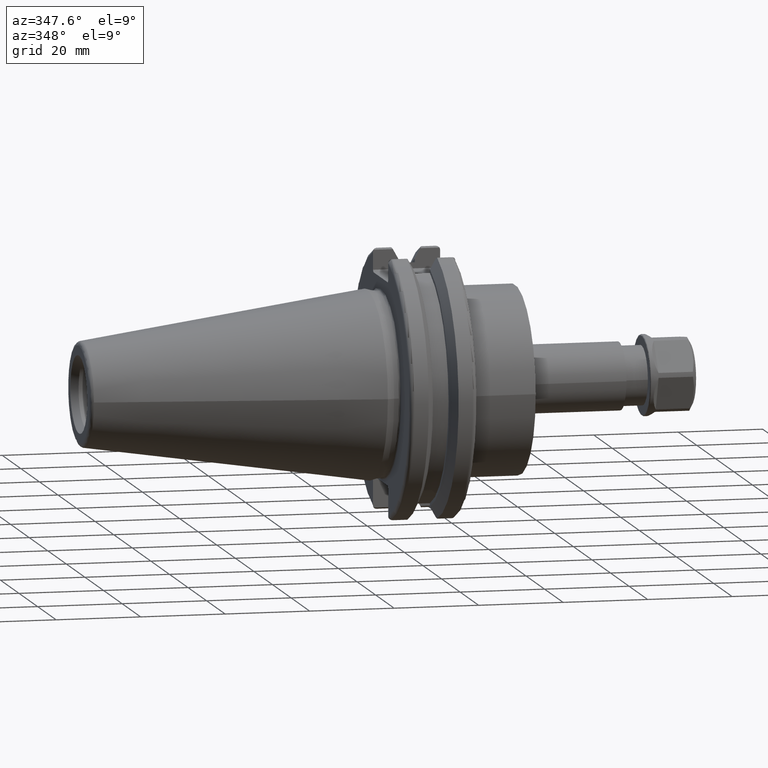
[diagram: clean part render]
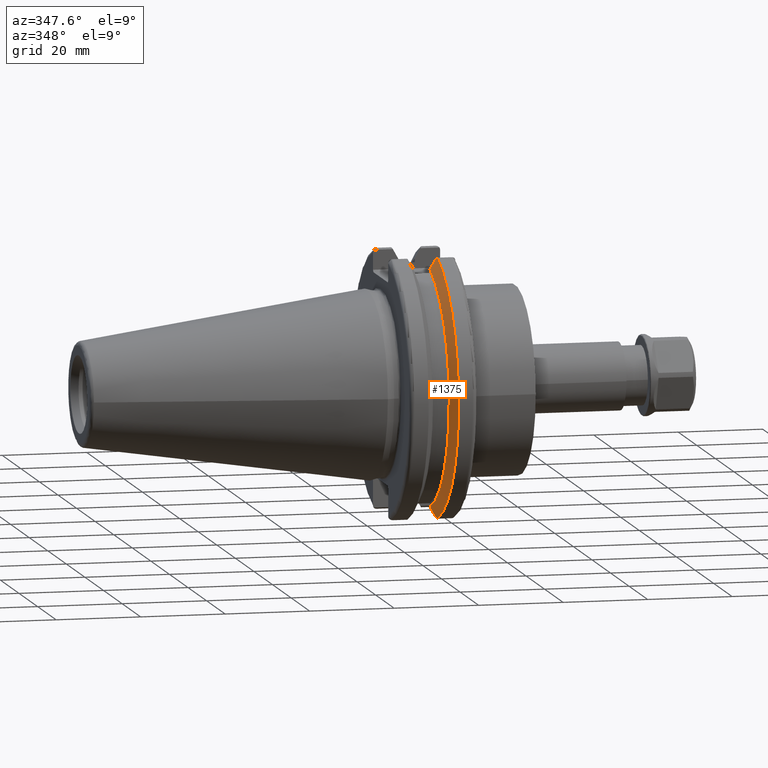
[diagram: same view with one face highlighted and labeled with its STEP entity id]
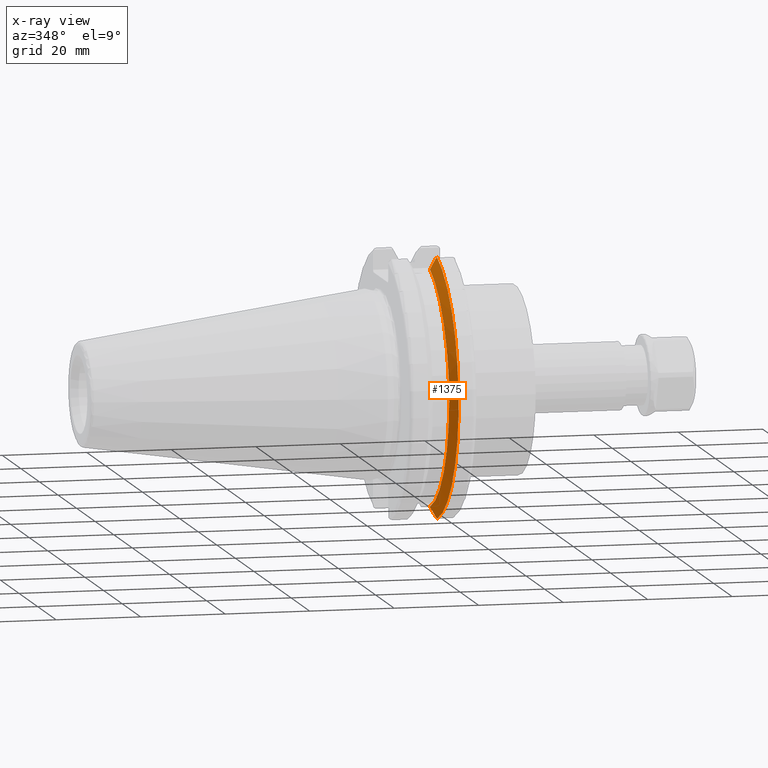
[diagram: x-ray of the same camera — body ghosted, the highlighted face saturated]
A machine part, auxiliary view. The second image highlights one B-rep face of the part: STEP entity #1375.
The next image is the same camera in x-ray: the body ghosted, the highlighted face saturated — about 0% of this face is hidden behind the body in this view.
In plain terms, the highlighted conical surface has half-angle 60 deg.
Its self-contained STEP definition (entity closure, byte-faithful):
#38=(
BOUNDED_CURVE()
B_SPLINE_CURVE(2,(#2276,#2277,#2278),.UNSPECIFIED.,.F.,.F.)
B_SPLINE_CURVE_WITH_KNOTS((3,3),(0.0550586467388173,0.33160778953585),
 .UNSPECIFIED.)
CURVE()
GEOMETRIC_REPRESENTATION_ITEM()
RATIONAL_B_SPLINE_CURVE((1.00031614444917,1.00095203903631,1.))
REPRESENTATION_ITEM('')
);
#39=(
BOUNDED_CURVE()
B_SPLINE_CURVE(2,(#2284,#2285,#2286),.UNSPECIFIED.,.F.,.F.)
B_SPLINE_CURVE_WITH_KNOTS((3,3),(0.,0.276549142796619),.UNSPECIFIED.)
CURVE()
GEOMETRIC_REPRESENTATION_ITEM()
RATIONAL_B_SPLINE_CURVE((1.,1.00095203903827,1.00031614444983))
REPRESENTATION_ITEM('')
);
#46=(
BOUNDED_CURVE()
B_SPLINE_CURVE(2,(#2419,#2420,#2421),.UNSPECIFIED.,.F.,.F.)
B_SPLINE_CURVE_WITH_KNOTS((3,3),(0.,0.0639048713676077),.UNSPECIFIED.)
CURVE()
GEOMETRIC_REPRESENTATION_ITEM()
RATIONAL_B_SPLINE_CURVE((1.,1.00028444218288,1.00047644010581))
REPRESENTATION_ITEM('')
);
#47=(
BOUNDED_CURVE()
B_SPLINE_CURVE(2,(#2435,#2436,#2437),.UNSPECIFIED.,.F.,.F.)
B_SPLINE_CURVE_WITH_KNOTS((3,3),(0.32935353363123,0.393258405001023),
 .UNSPECIFIED.)
CURVE()
GEOMETRIC_REPRESENTATION_ITEM()
RATIONAL_B_SPLINE_CURVE((1.00047644010596,1.00028444218297,1.))
REPRESENTATION_ITEM('')
);
#140=CONICAL_SURFACE('',#1559,30.3546886482472,1.0471975511966);
#190=FACE_OUTER_BOUND('',#278,.T.);
#278=EDGE_LOOP('',(#1131,#1132,#1133,#1134,#1135,#1136));
#542=CIRCLE('',#1553,31.75);
#545=CIRCLE('',#1560,28.9593772964944);
#635=VERTEX_POINT('',#2273);
#636=VERTEX_POINT('',#2275);
#637=VERTEX_POINT('',#2281);
#638=VERTEX_POINT('',#2283);
#663=VERTEX_POINT('',#2417);
#664=VERTEX_POINT('',#2423);
#786=EDGE_CURVE('',#636,#635,#38,.T.);
#789=EDGE_CURVE('',#638,#637,#39,.T.);
#831=EDGE_CURVE('',#663,#637,#46,.T.);
#833=EDGE_CURVE('',#664,#663,#542,.T.);
#838=EDGE_CURVE('',#636,#664,#47,.T.);
#839=EDGE_CURVE('',#635,#638,#545,.T.);
#1131=ORIENTED_EDGE('',*,*,#831,.F.);
#1132=ORIENTED_EDGE('',*,*,#833,.F.);
#1133=ORIENTED_EDGE('',*,*,#838,.F.);
#1134=ORIENTED_EDGE('',*,*,#786,.T.);
#1135=ORIENTED_EDGE('',*,*,#839,.T.);
#1136=ORIENTED_EDGE('',*,*,#789,.T.);
#1375=ADVANCED_FACE('',(#190),#140,.T.);
#1553=AXIS2_PLACEMENT_3D('',#2425,#1849,#1850);
#1559=AXIS2_PLACEMENT_3D('',#2438,#1863,#1864);
#1560=AXIS2_PLACEMENT_3D('',#2439,#1865,#1866);
#1849=DIRECTION('center_axis',(1.,0.,0.));
#1850=DIRECTION('ref_axis',(0.,0.,-1.));
#1863=DIRECTION('center_axis',(1.,0.,0.));
#1864=DIRECTION('ref_axis',(0.,-1.,-1.22464679914735E-16));
#1865=DIRECTION('center_axis',(1.,0.,0.));
#1866=DIRECTION('ref_axis',(0.,0.,-1.));
#2273=CARTESIAN_POINT('',(13.042,-8.19,27.7771386827498));
#2275=CARTESIAN_POINT('',(14.3744146964874,-8.19,30.1755016258903));
#2276=CARTESIAN_POINT('Ctrl Pts',(14.3744146964874,-8.19,30.1755016258903));
#2277=CARTESIAN_POINT('Ctrl Pts',(13.6806364384668,-8.19,28.9303689539537));
#2278=CARTESIAN_POINT('Ctrl Pts',(13.042,-8.19,27.7771386827498));
#2281=CARTESIAN_POINT('',(14.3744146964874,-8.19,-30.1755016258903));
#2283=CARTESIAN_POINT('',(13.042,-8.19,-27.7771386827498));
#2284=CARTESIAN_POINT('Ctrl Pts',(13.042,-8.19,-27.7771386827498));
#2285=CARTESIAN_POINT('Ctrl Pts',(13.6806364384734,-8.19,-28.9303689539657));
#2286=CARTESIAN_POINT('Ctrl Pts',(14.3744146964874,-8.19,-30.1755016258903));
#2417=CARTESIAN_POINT('',(14.6531667690756,-8.67204822802685,-30.5427254764662));
#2419=CARTESIAN_POINT('Ctrl Pts',(14.6531667690756,-8.67204822802687,-30.5427254764662));
#2420=CARTESIAN_POINT('Ctrl Pts',(14.5121085187837,-8.42917748262646,-30.357706789263));
#2421=CARTESIAN_POINT('Ctrl Pts',(14.3744146964874,-8.19,-30.1755016258903));
#2423=CARTESIAN_POINT('',(14.6531667690756,-8.67204822802685,30.5427254764662));
#2425=CARTESIAN_POINT('Origin',(14.6531667690756,0.,0.));
#2435=CARTESIAN_POINT('Ctrl Pts',(14.3744146964874,-8.19,30.1755016258903));
#2436=CARTESIAN_POINT('Ctrl Pts',(14.5121085187884,-8.42917748263461,30.3577067892692));
#2437=CARTESIAN_POINT('Ctrl Pts',(14.6531667690756,-8.67204822802686,30.5427254764662));
#2438=CARTESIAN_POINT('Origin',(13.8475833845378,0.,0.));
#2439=CARTESIAN_POINT('Origin',(13.042,0.,0.));